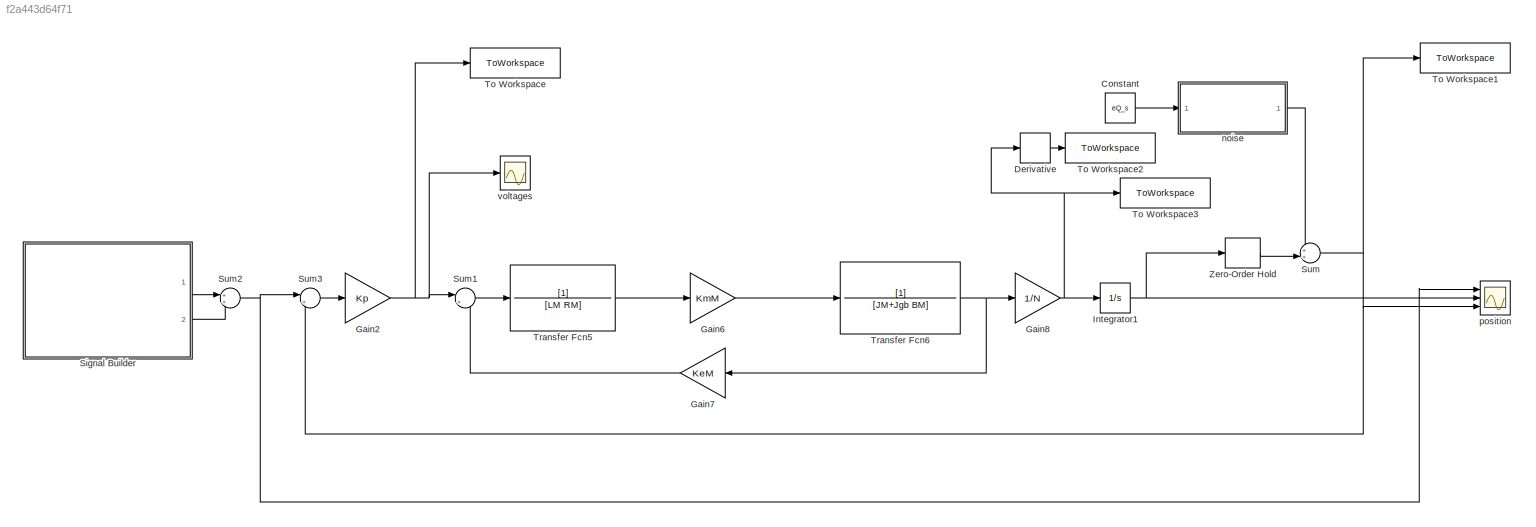
MODEL slx_f2a443d64f71
KIND model
CONFIG AbsTol = auto
CONFIG EnableMultiTasking = off
CONFIG FixedStep = auto
CONFIG MaxStep = auto
CONFIG MinStep = auto
CONFIG RelTol = 1e-3
CONFIG SampleTimeConstraint = Unconstrained
CONFIG SolverName = VariableStepAuto
CONFIG StartTime = 0.0
CONFIG StopTime = 10
BLOCK [Constant] Constant
  Value = eQ_s
BLOCK [Derivative] Derivative
BLOCK [Gain] Gain2
  Gain = Kp
BLOCK [Gain] Gain6
  Gain = KmM
BLOCK [Gain] Gain7
  Gain = KeM
BLOCK [Gain] Gain8
  Gain = 1/N
BLOCK [Integrator] Integrator1
  Ports = [1, 1]
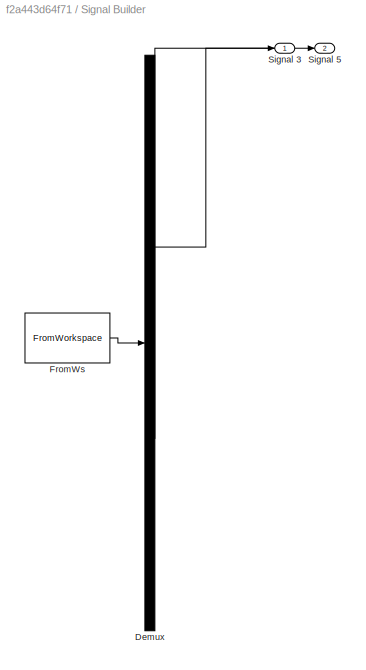
BLOCK [SubSystem] Signal Builder
  ClipboardFcn = sigbuilder_block('clipboard');
  CloseFcn = sigbuilder_block('close');
  ContinueFcn = sigbuilder_block('continue');
  CopyFcn = sigbuilder_block('copy');
  DeleteFcn = sigbuilder_block('delete');
  LoadFcn = sigbuilder_block('load');
  MaskHideContents = on
  ModelCloseFcn = sigbuilder_block('modelClose');
  NameChangeFcn = sigbuilder_block('namechange');
  OpenFcn = sigbuilder_block('open',[801.75 51.75 558 394.5 ]);
  PauseFcn = sigbuilder_block('pause');
  Ports = [0, 2]
  PreSaveFcn = sigbuilder_block('preSave');
  RequestExecContextInheritance = off
  StartFcn = sigbuilder_block('start');
  StopFcn = sigbuilder_block('stop');
  Tag = STV Subsys
BLOCK [Demux] Signal Builder/Demux
  DisplayOption = none
  Outputs = 2
  Ports = [1, 2]
  Tag = STV Demux
BLOCK [FromWorkspace] Signal Builder/FromWs
  Tag = STV FromWs
  VariableName = tuvar
BLOCK [Outport] Signal Builder/Signal 3
  Tag = STV Outport
BLOCK [Outport] Signal Builder/Signal 5
  Port = 2
  Tag = STV Outport
BLOCK [Sum] Sum
  Inputs = ++|
  Ports = [2, 1]
BLOCK [Sum] Sum1
  Inputs = |+-
  Ports = [2, 1]
BLOCK [Sum] Sum2
  Ports = [2, 1]
BLOCK [Sum] Sum3
  Inputs = |+-
  Ports = [2, 1]
BLOCK [ToWorkspace] To Workspace
  FixptAsFi = on
  MaxDataPoints = inf
  Ports = [1]
  SampleTime = Ts
  SaveFormat = Timeseries
  VariableName = voltages
BLOCK [ToWorkspace] To Workspace1
  FixptAsFi = on
  MaxDataPoints = inf
  Ports = [1]
  SampleTime = Ts
  SaveFormat = Timeseries
  VariableName = positions
BLOCK [ToWorkspace] To Workspace2
  FixptAsFi = on
  MaxDataPoints = inf
  Ports = [1]
  SampleTime = Ts
  SaveFormat = Timeseries
  VariableName = actual_acc
BLOCK [ToWorkspace] To Workspace3
  FixptAsFi = on
  MaxDataPoints = inf
  Ports = [1]
  SampleTime = Ts
  SaveFormat = Timeseries
  VariableName = actual_vel
BLOCK [TransferFcn] Transfer Fcn5
  Denominator = [LM RM]
BLOCK [TransferFcn] Transfer Fcn6
  Denominator = [JM+Jgb BM]
BLOCK [ZeroOrderHold] Zero-Order Hold
  SampleTime = Ts
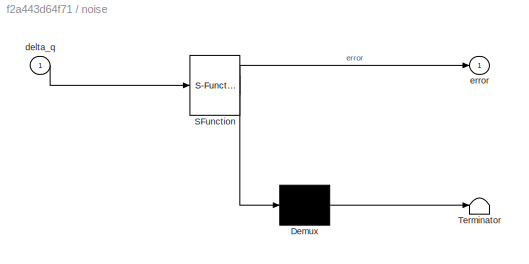
BLOCK [SubSystem] noise
  ErrorFcn = Stateflow.Translate.translate
  PermitHierarchicalResolution = ExplicitOnly
  Ports = [1, 1]
  RequestExecContextInheritance = off
  SFBlockType = MATLAB Function
  TreatAsAtomicUnit = on
BLOCK [Demux] noise/ Demux 
  Outputs = 1
  Ports = [1, 1]
BLOCK [S-Function] noise/ SFunction 
  EnableBusSupport = on
  FunctionName = sf_sfun
  PortCounts = [1 2]
  Ports = [1, 2]
  SFcnIsStateOwnerBlock = off
  SFunctionDeploymentMode = off
  Tag = Stateflow S-Function 1
BLOCK [Terminator] noise/ Terminator 
BLOCK [Inport] noise/delta_q
BLOCK [Outport] noise/error
  VectorParamsAs1DForOutWhenUnconnected = off
BLOCK [Scope] position
  Floating = off
  NumInputPorts = 3
  Ports = [3]
  ScopeSpecificationString = Simulink.scopes.TimeScopeBlockCfg('CurrentConfiguration', extmgr.ConfigurationSet(extmgr.Configuration('Core','General UI',true),extmgr.Configuration('Core','Source UI',true),extmgr.Configuration('Sources','WiredSimulink',true,'DataLoggingVariableName','ScopeData2'),extmgr.Configuration('Visuals','Time Domain',true,'SerializedDisplays',{struct('MinYLimReal','-2.38242','MaxYLimReal','2.24249','YLab...<+1482ch>
BLOCK [Scope] voltages
  Floating = off
  NumInputPorts = 1
  Ports = [1]
  ScopeSpecificationString = Simulink.scopes.TimeScopeBlockCfg('CurrentConfiguration', extmgr.ConfigurationSet(extmgr.Configuration('Core','General UI',true),extmgr.Configuration('Core','Source UI',true),extmgr.Configuration('Sources','WiredSimulink',true,'DataLoggingVariableName','ScopeData1'),extmgr.Configuration('Visuals','Time Domain',true,'SerializedDisplays',{struct('MinYLimReal','-19.98208','MaxYLimReal','15.84351','YL...<+1473ch>
LINE Constant:1 -> noise:1
LINE Derivative:1 -> To Workspace2:1
NET Gain2:1 -> Sum1:1, To Workspace:1, voltages:1
LINE Gain6:1 -> Transfer Fcn6:1
LINE Gain7:1 -> Sum1:2
NET Gain8:1 -> Derivative:1, Integrator1:1, To Workspace3:1
NET Integrator1:1 -> Zero-Order Hold:1, position:2
LINE Signal Builder:1 -> Sum2:1
LINE Signal Builder:2 -> Sum2:2
LINE Sum1:1 -> Transfer Fcn5:1
NET Sum2:1 -> Sum3:1, position:1
LINE Sum3:1 -> Gain2:1
NET Sum:1 -> Sum3:2, To Workspace1:1, position:3
LINE Transfer Fcn5:1 -> Gain6:1
NET Transfer Fcn6:1 -> Gain7:1, Gain8:1
LINE Zero-Order Hold:1 -> Sum:2
LINE noise:1 -> Sum:1
note: NET lines group one-source signal fan-out (src -> all destinations, sorted); 1:1 wires keep LINE
CHART noise states=1 transitions=1
  STATE_LABEL 'eML_blk_kernel()'
  STATE_LABEL 'SCRIPT:\nfunction error = noise_measurement(delta_q)\nif randn(1)>0\n   error = delta_q;\nelse\n    error = -delta_q;\nend\n'
CHART  states=0 transitions=0
